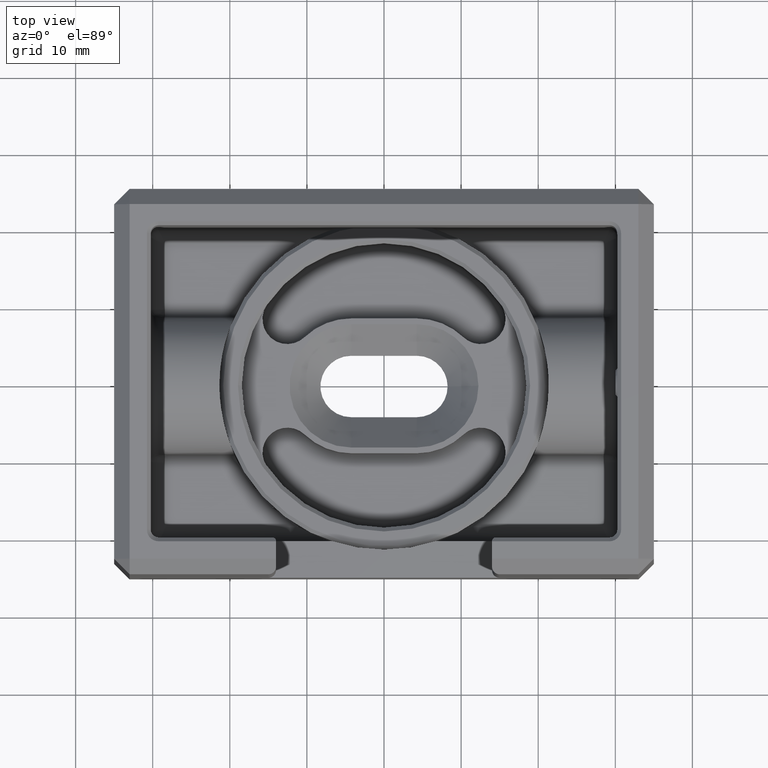
[diagram: clean part render]
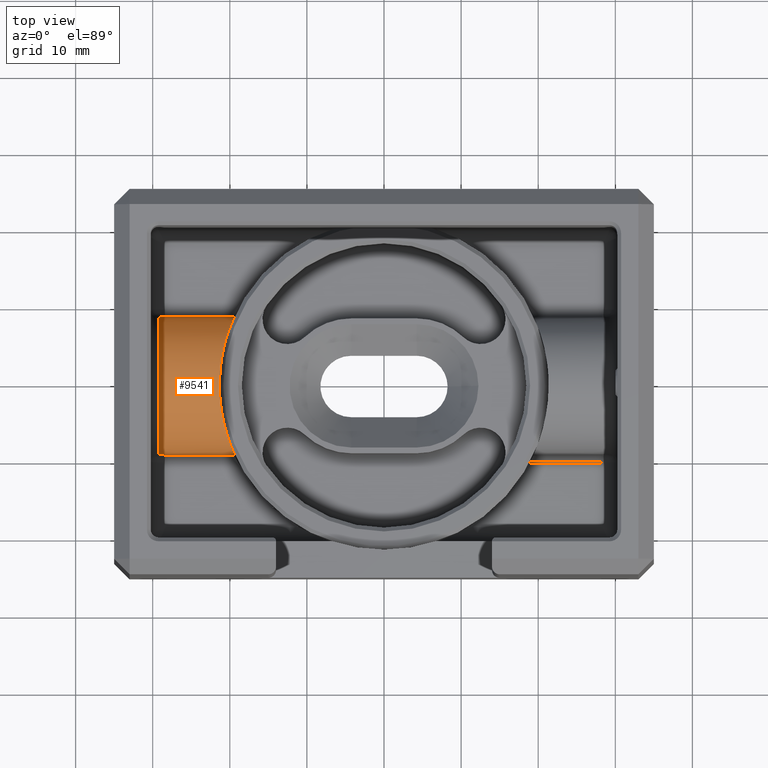
[diagram: same view with one face highlighted and labeled with its STEP entity id]
A machine part, top view. The second image highlights one B-rep face of the part: STEP entity #9541.
In plain terms, the highlighted cylindrical surface (partial cylindrical patch) has radius 9 mm, axis along (1, 0, 0).
Its self-contained STEP definition (entity closure, byte-faithful):
#15 = CARTESIAN_POINT ( 'NONE',  ( -20.71058571584501400, 5.208004162574245500, -7.639412557547114300 ) ) ;
#186 = CARTESIAN_POINT ( 'NONE',  ( -20.92115074386937900, 4.265138914047226700, -7.069991442461744500 ) ) ;
#704 = DIRECTION ( 'NONE',  ( -3.854941057726235100E-016, 1.000000000000000000, 0.0000000000000000000 ) ) ;
#744 = CARTESIAN_POINT ( 'NONE',  ( -28.50188783282673900, -8.952784868478143900, -14.07835866797591800 ) ) ;
#984 = CARTESIAN_POINT ( 'NONE',  ( -28.50023377446646900, 8.952834839660269500, -14.07883629168025200 ) ) ;
#1053 = CARTESIAN_POINT ( 'NONE',  ( -21.34457303634226100, -0.5563292019188824700, -6.012850639826334400 ) ) ;
#1135 = CARTESIAN_POINT ( 'NONE',  ( -20.87033471673592200, -4.506528579112247400, -7.204718538386204700 ) ) ;
#1480 = CARTESIAN_POINT ( 'NONE',  ( -19.38124093034293000, -8.954886933959583600, -14.10000000000000100 ) ) ;
#1673 = CARTESIAN_POINT ( 'NONE',  ( -28.24999999999998600, -8.954886933959585300, -14.10000000000000100 ) ) ;
#2063 = LINE ( 'NONE', #19986, #11235 ) ;
#2074 = CARTESIAN_POINT ( 'NONE',  ( -21.17883477685848700, 2.747661124828907100, -6.411977707182679800 ) ) ;
#2389 = EDGE_CURVE ( 'NONE', #13392, #10793, #6912, .T. ) ;
#2429 = DIRECTION ( 'NONE',  ( 0.0000000000000000000, 0.0000000000000000000, -1.000000000000000000 ) ) ;
#2452 = EDGE_LOOP ( 'NONE', ( #5726, #15672, #17268, #15686, #11447, #13054, #2806 ) ) ;
#2530 = CARTESIAN_POINT ( 'NONE',  ( -29.24999999999998600, -8.843462658049158900, -13.32394214315491100 ) ) ;
#2680 = EDGE_CURVE ( 'NONE', #10793, #10284, #21042, .T. ) ;
#2806 = ORIENTED_EDGE ( 'NONE', *, *, #12395, .T. ) ;
#2911 = CARTESIAN_POINT ( 'NONE',  ( -20.35749264248599700, -6.447649486485225600, -8.697247440804131800 ) ) ;
#3163 = CARTESIAN_POINT ( 'NONE',  ( -19.40729494845407300, -8.898497701360714300, -13.53893421975653100 ) ) ;
#3856 = CARTESIAN_POINT ( 'NONE',  ( -21.32834393135359000, 1.109760387222996900, -6.050995476235597100 ) ) ;
#3933 = CARTESIAN_POINT ( 'NONE',  ( -21.05973220046109900, 3.518199210598163900, -6.711561277644698900 ) ) ;
#4094 = CARTESIAN_POINT ( 'NONE',  ( -19.88563655484928100, 7.775360121022307800, -10.43420951363955300 ) ) ;
#4743 = B_SPLINE_CURVE_WITH_KNOTS ( 'NONE', 3,
 ( #24653, #3163, #7163, #18631, #10872, #14677, #22622, #16927, #14599, #24570, #2911, #12887, #8793, #1135, #22458, #20592, #10780, #12725, #16676, #8970, #14777, #1053, #4948, #6905 ),
 .UNSPECIFIED., .F., .F.,
 ( 4, 2, 2, 2, 2, 2, 2, 2, 2, 2, 2, 4 ),
 ( 8.969308846811181700E-016, 0.001667384546176687000, 0.002501076819264584600, 0.003334769092352482400, 0.005002153638528276800, 0.006669538184704069800, 0.008336922730879863700, 0.009170615003967760200, 0.01000430727705565700, 0.01167169182323145000, 0.01250538409631934600, 0.01333907636940724300 ),
 .UNSPECIFIED. ) ;
#4928 = LINE ( 'NONE', #16342, #24461 ) ;
#4948 = CARTESIAN_POINT ( 'NONE',  ( -21.35000000000000500, -0.2779839422373777100, -5.999999999999996400 ) ) ;
#5584 = CARTESIAN_POINT ( 'NONE',  ( -21.35000000000000100, 3.666511891496911000E-020, -5.999999999999995600 ) ) ;
#5662 = AXIS2_PLACEMENT_3D ( 'NONE', #18370, #12390, #704 ) ;
#5726 = ORIENTED_EDGE ( 'NONE', *, *, #13209, .T. ) ;
#6032 = CARTESIAN_POINT ( 'NONE',  ( -19.56000097966863300, 8.557808706422044100, -12.19998157889064500 ) ) ;
#6329 = VERTEX_POINT ( 'NONE', #1673 ) ;
#6372 = DIRECTION ( 'NONE',  ( 1.000000000000000000, 0.0000000000000000000, 0.0000000000000000000 ) ) ;
#6763 = CARTESIAN_POINT ( 'NONE',  ( -28.37611426979107100, 8.954886933961331500, -14.10000000000143700 ) ) ;
#6905 = CARTESIAN_POINT ( 'NONE',  ( -21.35000000000000100, 3.666511891496911000E-020, -5.999999999999995600 ) ) ;
#6912 = B_SPLINE_CURVE_WITH_KNOTS ( 'NONE', 3,
 ( #18490, #6763, #984, #14621, #16615, #18571, #20527, #8817, #12747, #22988 ),
 .UNSPECIFIED., .F., .F.,
 ( 4, 2, 2, 2, 4 ),
 ( 0.0000000000000000000, 0.0003739741560279962500, 0.0007479483120559925000, 0.001121922468083988700, 0.001495896624111985000 ),
 .UNSPECIFIED. ) ;
#7163 = CARTESIAN_POINT ( 'NONE',  ( -19.45686017626110200, -8.791015990651741800, -12.99440548535199000 ) ) ;
#7863 = CARTESIAN_POINT ( 'NONE',  ( -20.87004969267874800, 4.507861781133947900, -7.205478149619664500 ) ) ;
#8746 = CARTESIAN_POINT ( 'NONE',  ( -29.24999999999998900, -8.818163074019446800, -13.20000000000000300 ) ) ;
#8793 = CARTESIAN_POINT ( 'NONE',  ( -20.71109214906345000, -5.205943342449573100, -7.638002613714600200 ) ) ;
#8817 = CARTESIAN_POINT ( 'NONE',  ( -29.22089867167806400, 8.865729828663381400, -13.44711413211038800 ) ) ;
#8970 = CARTESIAN_POINT ( 'NONE',  ( -21.30621776288214500, -1.394008629422104600, -6.104235303800969300 ) ) ;
#9234 = CYLINDRICAL_SURFACE ( 'NONE', #12964, 9.000000000000005300 ) ;
#9449 = EDGE_CURVE ( 'NONE', #14752, #13392, #4928, .T. ) ;
#9541 = ADVANCED_FACE ( 'NONE', ( #18410 ), #9234, .T. ) ;
#9921 = CARTESIAN_POINT ( 'NONE',  ( -21.24201094598286900, 2.215128425600012100, -6.258749738081844400 ) ) ;
#10000 = CARTESIAN_POINT ( 'NONE',  ( -19.38124093034286200, 8.954886933959725700, -14.10000000000140500 ) ) ;
#10199 = DIRECTION ( 'NONE',  ( 1.000000000000000000, 0.0000000000000000000, 0.0000000000000000000 ) ) ;
#10284 = VERTEX_POINT ( 'NONE', #8746 ) ;
#10388 = CARTESIAN_POINT ( 'NONE',  ( -29.03572604573520300, -8.915780838419275200, -13.76892863964529900 ) ) ;
#10780 = CARTESIAN_POINT ( 'NONE',  ( -21.06003257001632900, -3.516372721070495400, -6.710800107317230500 ) ) ;
#10793 = VERTEX_POINT ( 'NONE', #17601 ) ;
#10872 = CARTESIAN_POINT ( 'NONE',  ( -19.59910650519315900, -8.468164037953720000, -11.93949658545156100 ) ) ;
#11063 = CARTESIAN_POINT ( 'NONE',  ( -28.24999999999999300, 8.954886933959585300, -14.10000000000000100 ) ) ;
#11235 = VECTOR ( 'NONE', #6372, 1000.000000000000000 ) ;
#11447 = ORIENTED_EDGE ( 'NONE', *, *, #2389, .T. ) ;
#11623 = EDGE_CURVE ( 'NONE', #12524, #18684, #4743, .T. ) ;
#11811 = CARTESIAN_POINT ( 'NONE',  ( -20.23269301468631200, 6.825202388575073400, -9.108244749529031700 ) ) ;
#11977 = CARTESIAN_POINT ( 'NONE',  ( -21.35000000000000100, 3.666511891496911000E-020, -5.999999999999995600 ) ) ;
#12055 = CARTESIAN_POINT ( 'NONE',  ( -19.73407901632378300, 8.149030121939338400, -11.16999020680899000 ) ) ;
#12349 = CARTESIAN_POINT ( 'NONE',  ( -28.84755392436097300, -8.936674660433979500, -13.93110773857965300 ) ) ;
#12390 = DIRECTION ( 'NONE',  ( 1.000000000000000000, 2.569960705150825400E-016, 0.0000000000000000000 ) ) ;
#12395 = EDGE_CURVE ( 'NONE', #10284, #6329, #12412, .T. ) ;
#12412 = B_SPLINE_CURVE_WITH_KNOTS ( 'NONE', 3,
 ( #12425, #2530, #21980, #22071, #10388, #12349, #14289, #744, #14380, #23744 ),
 .UNSPECIFIED., .F., .F.,
 ( 4, 2, 2, 2, 4 ),
 ( 0.0000000000000000000, 0.0003729997832449062700, 0.0007459995664898125400, 0.001118999349734718900, 0.001491999132979625100 ),
 .UNSPECIFIED. ) ;
#12425 = CARTESIAN_POINT ( 'NONE',  ( -29.24999999999998900, -8.818163074019446800, -13.20000000000000300 ) ) ;
#12524 = VERTEX_POINT ( 'NONE', #1480 ) ;
#12725 = CARTESIAN_POINT ( 'NONE',  ( -21.17890823774381200, -2.746951348636686300, -6.411804253183331200 ) ) ;
#12747 = CARTESIAN_POINT ( 'NONE',  ( -29.24999999999999600, 8.843451007851406600, -13.32388506907512500 ) ) ;
#12887 = CARTESIAN_POINT ( 'NONE',  ( -20.59581882178001400, -5.640207234655143500, -7.965446988385029000 ) ) ;
#12964 = AXIS2_PLACEMENT_3D ( 'NONE', #24156, #10199, #2429 ) ;
#13054 = ORIENTED_EDGE ( 'NONE', *, *, #2680, .T. ) ;
#13209 = EDGE_CURVE ( 'NONE', #6329, #12524, #2063, .T. ) ;
#13392 = VERTEX_POINT ( 'NONE', #11063 ) ;
#13673 = CARTESIAN_POINT ( 'NONE',  ( -20.59514447880177800, 5.642699157296253700, -7.967390566724935400 ) ) ;
#14270 = DIRECTION ( 'NONE',  ( -1.000000000000000000, -0.0000000000000000000, -0.0000000000000000000 ) ) ;
#14289 = CARTESIAN_POINT ( 'NONE',  ( -28.73651032888902900, -8.943751614627004200, -13.99447192875751400 ) ) ;
#14380 = CARTESIAN_POINT ( 'NONE',  ( -28.37616881114797400, -8.954886933961331500, -14.10000000000143700 ) ) ;
#14599 = CARTESIAN_POINT ( 'NONE',  ( -19.99819903870207200, -7.484511757972315500, -9.972124418872262200 ) ) ;
#14621 = CARTESIAN_POINT ( 'NONE',  ( -28.73645151157746000, 8.943767492158020400, -13.99460590312492100 ) ) ;
#14677 = CARTESIAN_POINT ( 'NONE',  ( -19.68594749550398500, -8.264275478216962500, -11.42533440104995900 ) ) ;
#14752 = VERTEX_POINT ( 'NONE', #18784 ) ;
#14777 = CARTESIAN_POINT ( 'NONE',  ( -21.32275420703898700, -1.113756396551011800, -6.064794210981241400 ) ) ;
#15574 = CARTESIAN_POINT ( 'NONE',  ( -19.59919895132513900, 8.467952174118149600, -11.93888089785900600 ) ) ;
#15672 = ORIENTED_EDGE ( 'NONE', *, *, #11623, .T. ) ;
#15686 = ORIENTED_EDGE ( 'NONE', *, *, #9449, .T. ) ;
#15819 = CARTESIAN_POINT ( 'NONE',  ( -19.99784956463949500, 7.485403600447685200, -9.973579751471772800 ) ) ;
#16342 = CARTESIAN_POINT ( 'NONE',  ( -500000.0000000000600, 8.954886933959585300, -14.10000000000000100 ) ) ;
#16615 = CARTESIAN_POINT ( 'NONE',  ( -28.84676826652696500, 8.936740779615899300, -13.93165626630779400 ) ) ;
#16676 = CARTESIAN_POINT ( 'NONE',  ( -21.24173192948442000, -2.216760318337103200, -6.259431823548671200 ) ) ;
#16927 = CARTESIAN_POINT ( 'NONE',  ( -19.88573255472296700, -7.775132808894501800, -10.43368456234682500 ) ) ;
#17268 = ORIENTED_EDGE ( 'NONE', *, *, #23695, .T. ) ;
#17529 = CARTESIAN_POINT ( 'NONE',  ( -20.35647728202761900, 6.450880757599279000, -8.700493140576607900 ) ) ;
#17601 = CARTESIAN_POINT ( 'NONE',  ( -29.25000000000308400, 8.818163074019446800, -13.20000000000000300 ) ) ;
#18370 = CARTESIAN_POINT ( 'NONE',  ( -29.25000000000308400, -3.246276778204606500E-027, -15.00000000000000400 ) ) ;
#18410 = FACE_OUTER_BOUND ( 'NONE', #2452, .T. ) ;
#18490 = CARTESIAN_POINT ( 'NONE',  ( -28.24999999999999300, 8.954886933959585300, -14.10000000000000100 ) ) ;
#18571 = CARTESIAN_POINT ( 'NONE',  ( -29.03537210755057200, 8.915841127802764300, -13.76936151563799800 ) ) ;
#18631 = CARTESIAN_POINT ( 'NONE',  ( -19.55994885418739000, -8.557927222066757300, -12.20036171299026700 ) ) ;
#18684 = VERTEX_POINT ( 'NONE', #5584 ) ;
#18784 = CARTESIAN_POINT ( 'NONE',  ( -19.38124093034286200, 8.954886933959725700, -14.10000000000140500 ) ) ;
#19739 = CARTESIAN_POINT ( 'NONE',  ( -19.45683690325715500, 8.791069925865354400, -12.99454204343323100 ) ) ;
#19815 = CARTESIAN_POINT ( 'NONE',  ( -19.68616193680267700, 8.263766801813682500, -11.42413333219670500 ) ) ;
#19986 = CARTESIAN_POINT ( 'NONE',  ( -500000.0000000000600, -8.954886933959585300, -14.10000000000000100 ) ) ;
#20527 = CARTESIAN_POINT ( 'NONE',  ( -29.11406373787072300, 8.901728010699205400, -13.66888830782244200 ) ) ;
#20592 = CARTESIAN_POINT ( 'NONE',  ( -21.01629101478005900, -3.768508186117195200, -6.822286315484793900 ) ) ;
#21028 = B_SPLINE_CURVE_WITH_KNOTS ( 'NONE', 3,
 ( #11977, #21602, #3856, #9921, #2074, #3933, #23546, #186, #7863, #15, #13673, #17529, #11811, #15819, #4094, #12055, #19815, #15574, #6032, #19739, #21683, #10000 ),
 .UNSPECIFIED., .F., .F.,
 ( 4, 2, 2, 2, 2, 2, 2, 2, 2, 2, 4 ),
 ( 0.01333907636940724300, 0.01500535072047997000, 0.01667162507155269700, 0.01750476224708906100, 0.01833789942262542200, 0.02000417377369814400, 0.02167044812477086200, 0.02333672247584358400, 0.02416985965137994500, 0.02500299682691630600, 0.02666927117798903500 ),
 .UNSPECIFIED. ) ;
#21042 = CIRCLE ( 'NONE', #5662, 9.000000000000007100 ) ;
#21602 = CARTESIAN_POINT ( 'NONE',  ( -21.35000000000000100, 0.5555977042279589600, -5.999999999999994700 ) ) ;
#21683 = CARTESIAN_POINT ( 'NONE',  ( -19.40728424377391500, 8.898520869714129600, -13.53916474196209000 ) ) ;
#21980 = CARTESIAN_POINT ( 'NONE',  ( -29.22144818522279800, -8.865490699811287500, -13.44569967975299100 ) ) ;
#22071 = CARTESIAN_POINT ( 'NONE',  ( -29.11422382231888800, -8.901727683896824700, -13.66882793160281800 ) ) ;
#22458 = CARTESIAN_POINT ( 'NONE',  ( -20.92137758504453900, -4.264047597149126300, -7.069391376195345500 ) ) ;
#22622 = CARTESIAN_POINT ( 'NONE',  ( -19.73387340681248100, -8.149532362189772200, -11.17101789040105700 ) ) ;
#22988 = CARTESIAN_POINT ( 'NONE',  ( -29.25000000000308400, 8.818163074019446800, -13.20000000000000300 ) ) ;
#23546 = CARTESIAN_POINT ( 'NONE',  ( -21.01596146369925200, 3.770321227711803700, -6.823134859945576600 ) ) ;
#23695 = EDGE_CURVE ( 'NONE', #18684, #14752, #21028, .T. ) ;
#23744 = CARTESIAN_POINT ( 'NONE',  ( -28.24999999999998600, -8.954886933959585300, -14.10000000000000100 ) ) ;
#24156 = CARTESIAN_POINT ( 'NONE',  ( -500000.0000000000600, 0.0000000000000000000, -15.00000000000000400 ) ) ;
#24461 = VECTOR ( 'NONE', #14270, 1000.000000000000000 ) ;
#24570 = CARTESIAN_POINT ( 'NONE',  ( -20.23358389697169500, -6.822606813453199400, -9.105130588078992600 ) ) ;
#24653 = CARTESIAN_POINT ( 'NONE',  ( -19.38124093034293000, -8.954886933959583600, -14.10000000000000100 ) ) ;